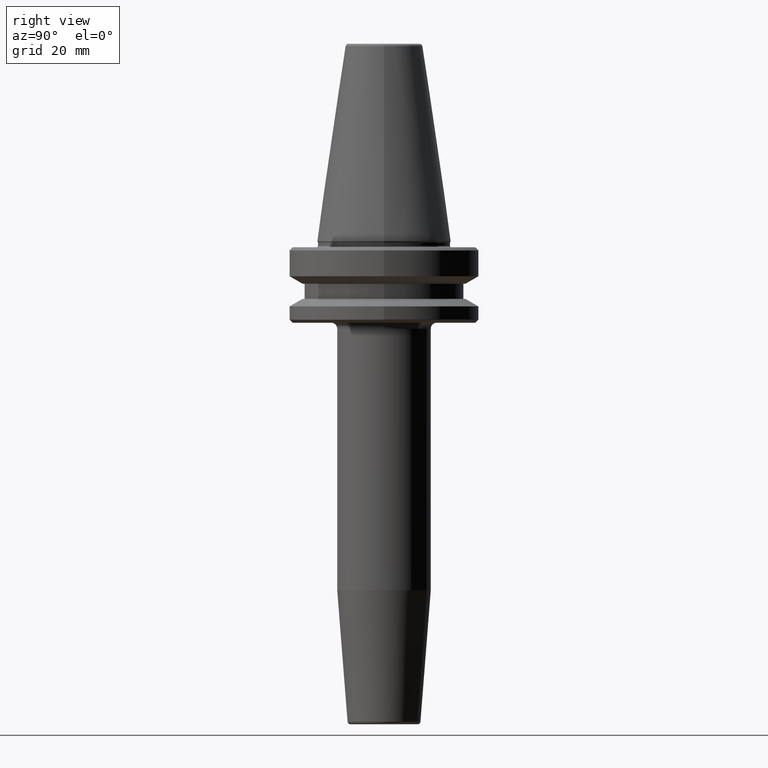
[diagram: clean part render]
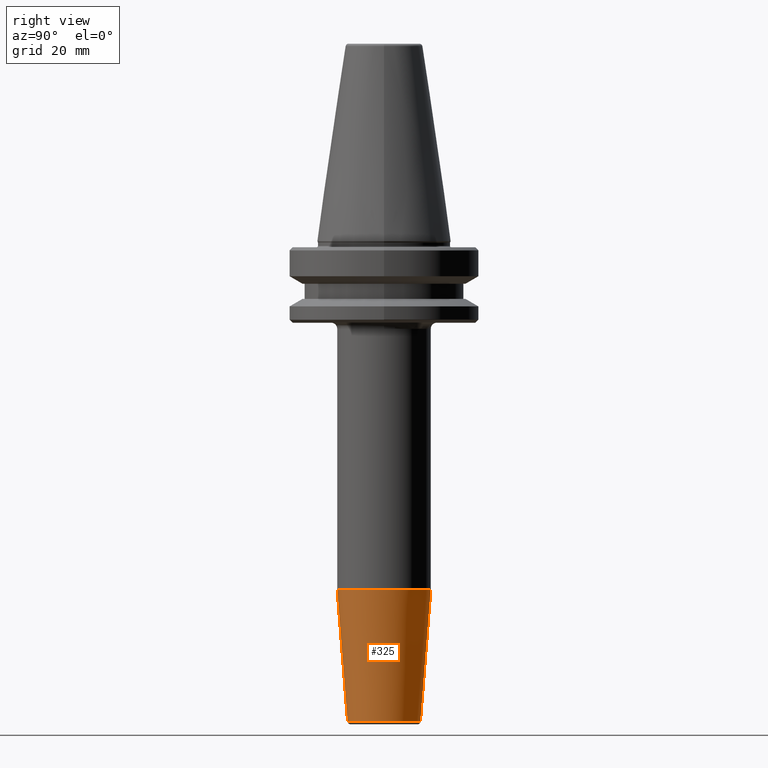
[diagram: same view with one face highlighted and labeled with its STEP entity id]
A machine part, right view. The second image highlights one B-rep face of the part: STEP entity #325.
In plain terms, the highlighted conical surface has half-angle 4.5 deg.
Its self-contained STEP definition (entity closure, byte-faithful):
#20 = AXIS2_PLACEMENT_3D ( 'NONE', #1234, #635, #50 ) ;
#38 = VECTOR ( 'NONE', #354, 1000.000000000000100 ) ;
#43 = ORIENTED_EDGE ( 'NONE', *, *, #1108, .F. ) ;
#50 = DIRECTION ( 'NONE',  ( 0.0000000000000000000, 1.000000000000000000, 0.0000000000000000000 ) ) ;
#53 = VERTEX_POINT ( 'NONE', #437 ) ;
#81 = CARTESIAN_POINT ( 'NONE',  ( 1.898202538678396800E-015, 15.50000000000000000, -115.5282834233806400 ) ) ;
#84 = FACE_OUTER_BOUND ( 'NONE', #1172, .T. ) ;
#89 = DIRECTION ( 'NONE',  ( 0.0000000000000000000, 1.000000000000000000, 0.0000000000000000000 ) ) ;
#112 = DIRECTION ( 'NONE',  ( 0.0000000000000000000, -7.550453949630298400E-017, 1.000000000000000000 ) ) ;
#196 = VERTEX_POINT ( 'NONE', #922 ) ;
#221 = CARTESIAN_POINT ( 'NONE',  ( 0.0000000000000000000, 9.972523231404220500E-015, -159.0784590957278200 ) ) ;
#239 = EDGE_CURVE ( 'NONE', #1165, #1093, #820, .T. ) ;
#265 = VECTOR ( 'NONE', #332, 1000.000000000000100 ) ;
#325 = ADVANCED_FACE ( 'NONE', ( #84 ), #1016, .T. ) ;
#332 = DIRECTION ( 'NONE',  ( 9.608468044708423300E-018, 0.07845909572783112100, 0.9969173337331289600 ) ) ;
#336 = AXIS2_PLACEMENT_3D ( 'NONE', #1273, #675, #89 ) ;
#354 = DIRECTION ( 'NONE',  ( 0.0000000000000000000, -0.07845909572783124600, 0.9969173337331289600 ) ) ;
#359 = CARTESIAN_POINT ( 'NONE',  ( 0.0000000000000000000, -12.07252684207489000, -159.0784590957278200 ) ) ;
#394 = ORIENTED_EDGE ( 'NONE', *, *, #239, .T. ) ;
#414 = ORIENTED_EDGE ( 'NONE', *, *, #945, .F. ) ;
#437 = CARTESIAN_POINT ( 'NONE',  ( 0.0000000000000000000, -15.49999999999998600, -115.5282834233806400 ) ) ;
#447 = CARTESIAN_POINT ( 'NONE',  ( 1.478458135476752900E-015, 12.07252684207490900, -159.0784590957278200 ) ) ;
#448 = ORIENTED_EDGE ( 'NONE', *, *, #823, .T. ) ;
#499 = DIRECTION ( 'NONE',  ( 0.0000000000000000000, -1.000000000000000000, 0.0000000000000000000 ) ) ;
#635 = DIRECTION ( 'NONE',  ( -0.0000000000000000000, 7.550453949630298400E-017, -1.000000000000000000 ) ) ;
#675 = DIRECTION ( 'NONE',  ( -0.0000000000000000000, 7.550453949630298400E-017, -1.000000000000000000 ) ) ;
#685 = AXIS2_PLACEMENT_3D ( 'NONE', #221, #112, #499 ) ;
#686 = CARTESIAN_POINT ( 'NONE',  ( 0.0000000000000000000, 12.07252684207491100, -159.0784590957278200 ) ) ;
#820 = LINE ( 'NONE', #447, #265 ) ;
#823 = EDGE_CURVE ( 'NONE', #1093, #53, #971, .T. ) ;
#922 = CARTESIAN_POINT ( 'NONE',  ( 1.478458135476753500E-015, -12.07252684207489100, -159.0784590957278200 ) ) ;
#945 = EDGE_CURVE ( 'NONE', #196, #53, #1117, .T. ) ;
#971 = CIRCLE ( 'NONE', #20, 15.49999999999999300 ) ;
#1016 = CONICAL_SURFACE ( 'NONE', #685, 12.07252684207490000, 0.07853981633973103300 ) ;
#1093 = VERTEX_POINT ( 'NONE', #81 ) ;
#1108 = EDGE_CURVE ( 'NONE', #1165, #196, #1186, .T. ) ;
#1117 = LINE ( 'NONE', #359, #38 ) ;
#1165 = VERTEX_POINT ( 'NONE', #686 ) ;
#1172 = EDGE_LOOP ( 'NONE', ( #43, #394, #448, #414 ) ) ;
#1186 = CIRCLE ( 'NONE', #336, 12.07252684207490000 ) ;
#1234 = CARTESIAN_POINT ( 'NONE',  ( 0.0000000000000000000, 6.684287272280548800E-015, -115.5282834233806400 ) ) ;
#1273 = CARTESIAN_POINT ( 'NONE',  ( 0.0000000000000000000, 9.972523231404220500E-015, -159.0784590957278200 ) ) ;